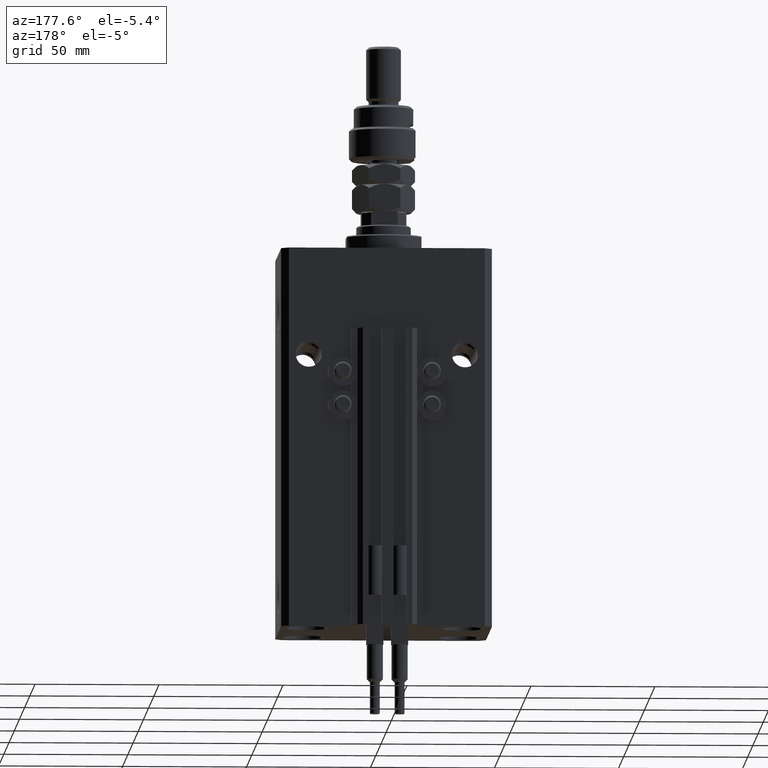
[diagram: clean part render]
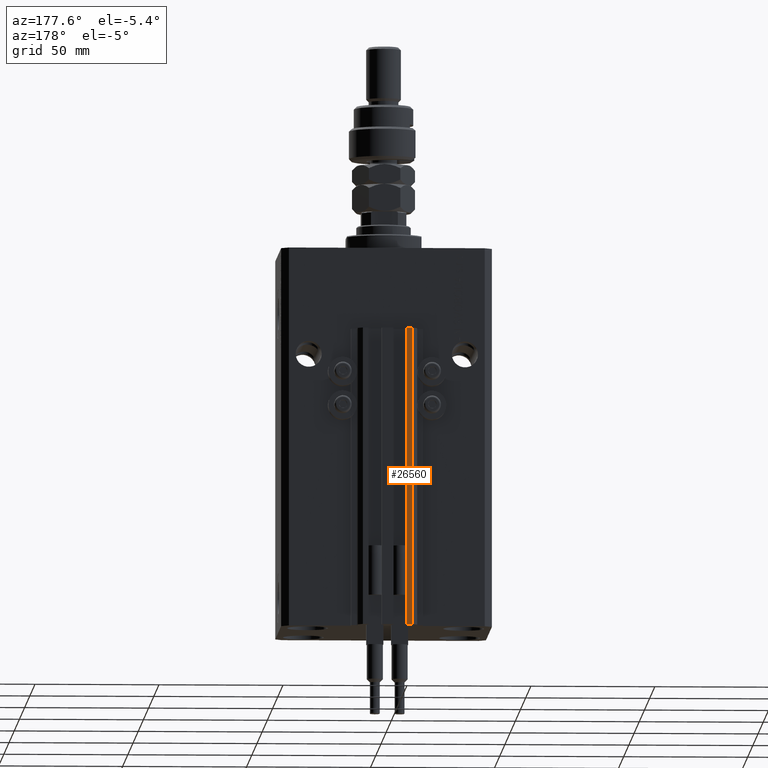
[diagram: same view with one face highlighted and labeled with its STEP entity id]
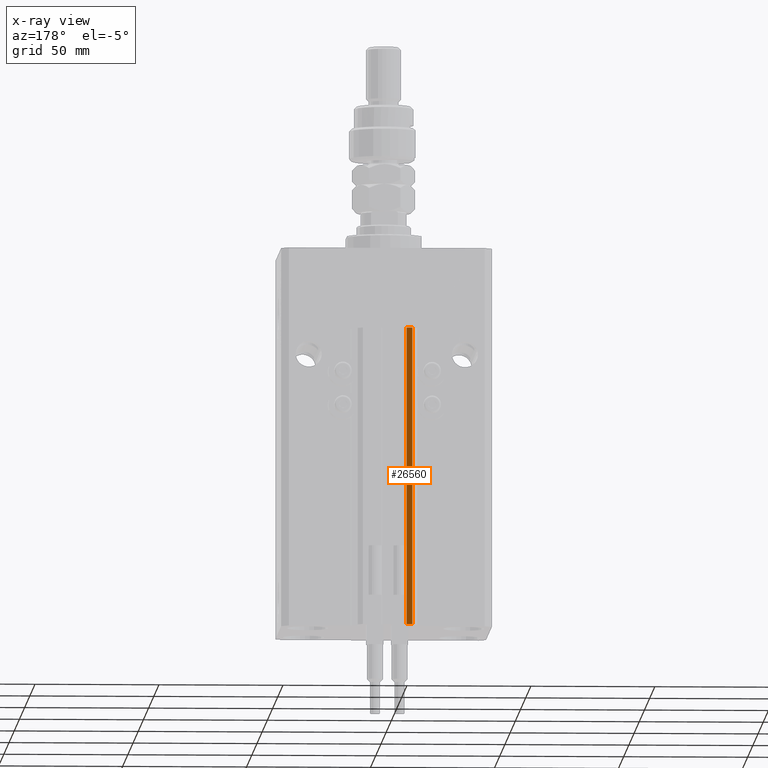
[diagram: x-ray of the same camera — body ghosted, the highlighted face saturated]
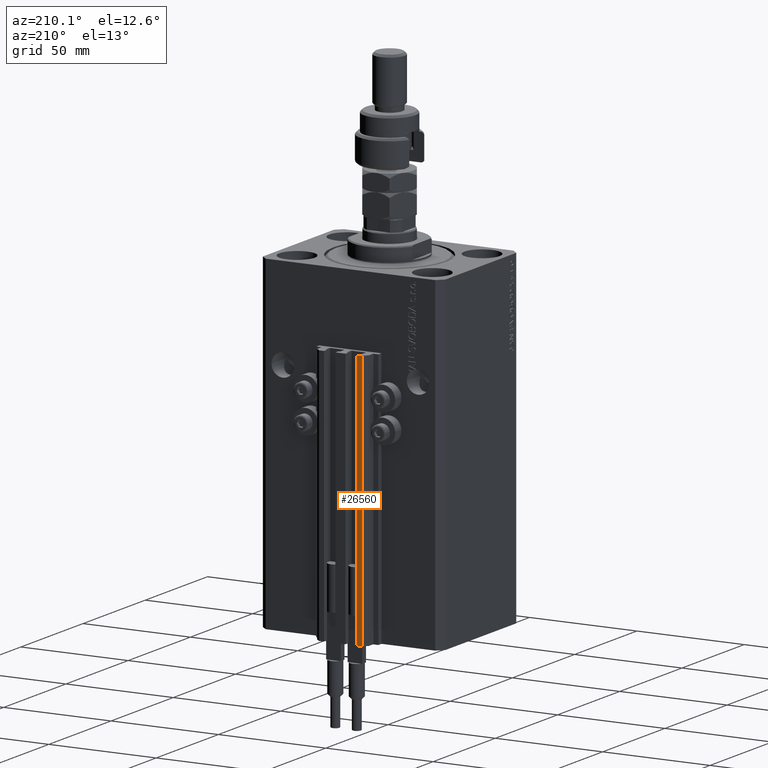
[diagram: same view with one face highlighted and labeled with its STEP entity id]
A machine part, auxiliary view. The second image highlights one B-rep face of the part: STEP entity #26560.
The next image is the same camera in x-ray: the body ghosted, the highlighted face saturated — about 0% of this face is hidden behind the body in this view.
A second angle (auxiliary view) of the same face is appended — the face is thin or edge-on in the first view.
In plain terms, the highlighted planar face has unit normal (0, 1, 0).
Its self-contained STEP definition (entity closure, byte-faithful):
#782 = CARTESIAN_POINT ( 'NONE',  ( -10.00000000000000000, 39.49999999999999289, -33.00000000000000000 ) ) ;
#1188 = CARTESIAN_POINT ( 'NONE',  ( -7.650000000000002132, 39.49999999999999289, -153.0000000000000000 ) ) ;
#1373 = EDGE_CURVE ( 'NONE', #4005, #33746, #11711, .T. ) ;
#1836 = CARTESIAN_POINT ( 'NONE',  ( -10.00000000000000000, 39.49999999999999289, -153.0000000000000000 ) ) ;
#2240 = VECTOR ( 'NONE', #27286, 1000.000000000000000 ) ;
#2765 = VECTOR ( 'NONE', #39666, 1000.000000000000000 ) ;
#3775 = ORIENTED_EDGE ( 'NONE', *, *, #36649, .F. ) ;
#3917 = DIRECTION ( 'NONE',  ( 0.000000000000000000, 0.000000000000000000, 1.000000000000000000 ) ) ;
#4005 = VERTEX_POINT ( 'NONE', #34665 ) ;
#4403 = ORIENTED_EDGE ( 'NONE', *, *, #1373, .F. ) ;
#6879 = AXIS2_PLACEMENT_3D ( 'NONE', #1188, #45259, #13609 ) ;
#8764 = LINE ( 'NONE', #20158, #2765 ) ;
#9219 = FACE_OUTER_BOUND ( 'NONE', #23059, .T. ) ;
#11711 = LINE ( 'NONE', #43360, #44527 ) ;
#13609 = DIRECTION ( 'NONE',  ( 0.000000000000000000, 0.000000000000000000, 1.000000000000000000 ) ) ;
#17286 = LINE ( 'NONE', #33111, #35305 ) ;
#19646 = VERTEX_POINT ( 'NONE', #782 ) ;
#20158 = CARTESIAN_POINT ( 'NONE',  ( -7.650000000000002132, 39.49999999999999289, -153.0000000000000000 ) ) ;
#23059 = EDGE_LOOP ( 'NONE', ( #3775, #4403, #30774, #41230 ) ) ;
#26130 = EDGE_CURVE ( 'NONE', #4005, #39352, #8764, .T. ) ;
#26560 = ADVANCED_FACE ( 'NONE', ( #9219 ), #48624, .T. ) ;
#27286 = DIRECTION ( 'NONE',  ( 0.000000000000000000, 0.000000000000000000, 1.000000000000000000 ) ) ;
#29220 = CARTESIAN_POINT ( 'NONE',  ( -7.650000000000002132, 39.49999999999999289, -33.00000000000000000 ) ) ;
#30774 = ORIENTED_EDGE ( 'NONE', *, *, #26130, .T. ) ;
#31180 = LINE ( 'NONE', #35852, #2240 ) ;
#33111 = CARTESIAN_POINT ( 'NONE',  ( -7.650000000000002132, 39.49999999999999289, -33.00000000000000000 ) ) ;
#33746 = VERTEX_POINT ( 'NONE', #29220 ) ;
#34665 = CARTESIAN_POINT ( 'NONE',  ( -7.650000000000002132, 39.49999999999999289, -153.0000000000000000 ) ) ;
#35305 = VECTOR ( 'NONE', #45041, 1000.000000000000000 ) ;
#35852 = CARTESIAN_POINT ( 'NONE',  ( -10.00000000000000000, 39.49999999999999289, -153.0000000000000000 ) ) ;
#36649 = EDGE_CURVE ( 'NONE', #33746, #19646, #17286, .T. ) ;
#39352 = VERTEX_POINT ( 'NONE', #1836 ) ;
#39666 = DIRECTION ( 'NONE',  ( -1.000000000000000000, 0.000000000000000000, 0.000000000000000000 ) ) ;
#40707 = EDGE_CURVE ( 'NONE', #39352, #19646, #31180, .T. ) ;
#41230 = ORIENTED_EDGE ( 'NONE', *, *, #40707, .T. ) ;
#43360 = CARTESIAN_POINT ( 'NONE',  ( -7.650000000000002132, 39.49999999999999289, -153.0000000000000000 ) ) ;
#44527 = VECTOR ( 'NONE', #3917, 1000.000000000000000 ) ;
#45041 = DIRECTION ( 'NONE',  ( -1.000000000000000000, 0.000000000000000000, 0.000000000000000000 ) ) ;
#45259 = DIRECTION ( 'NONE',  ( 0.000000000000000000, 1.000000000000000000, -0.000000000000000000 ) ) ;
#48624 = PLANE ( 'NONE',  #6879 ) ;